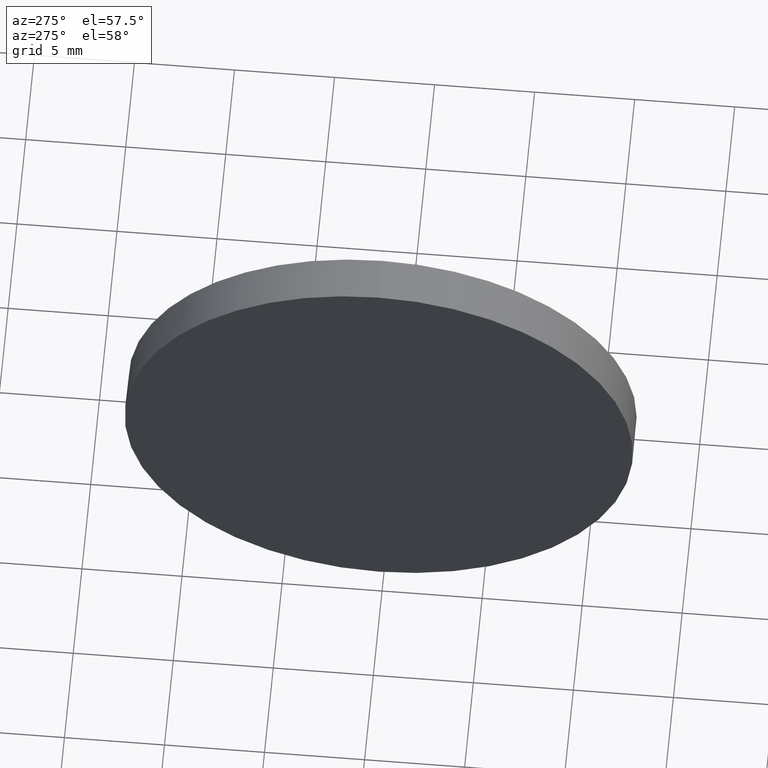
[diagram: clean part render]
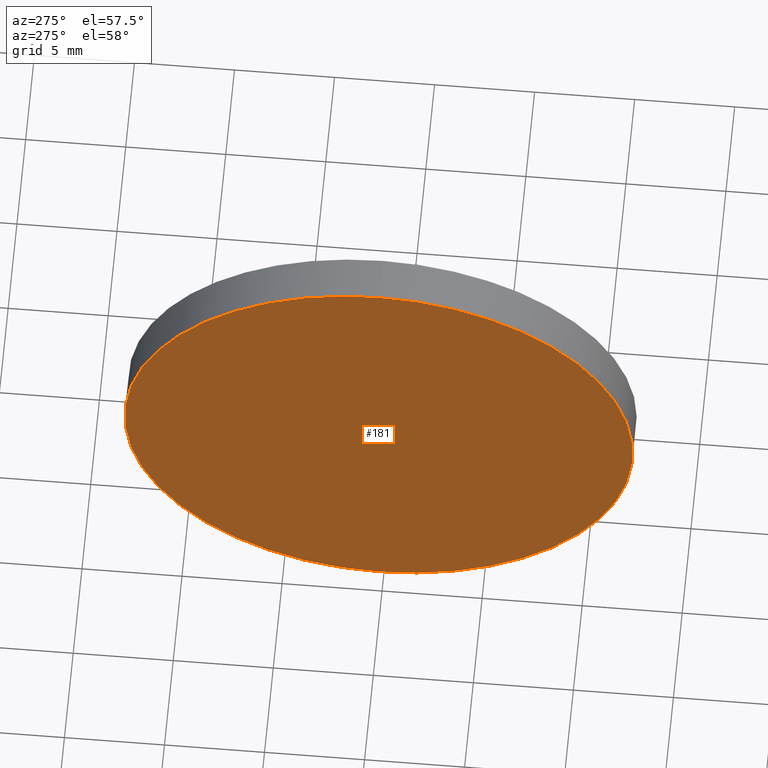
[diagram: same view with one face highlighted and labeled with its STEP entity id]
A machine part, auxiliary view. The second image highlights one B-rep face of the part: STEP entity #181.
In plain terms, the highlighted planar face has unit normal (-1, 0, 0).
Its self-contained STEP definition (entity closure, byte-faithful):
#7 = CARTESIAN_POINT ( 'NONE',  ( 115.7736064308381300, 65.23355492641219700, 0.0000000000000000000 ) ) ;
#15 = PLANE ( 'NONE',  #95 ) ;
#22 = ORIENTED_EDGE ( 'NONE', *, *, #34, .F. ) ;
#34 = EDGE_CURVE ( 'NONE', #58, #169, #164, .T. ) ;
#36 = CARTESIAN_POINT ( 'NONE',  ( 115.7736064308381300, 65.23355492641219700, 0.0000000000000000000 ) ) ;
#48 = CIRCLE ( 'NONE', #68, 12.70000000000000300 ) ;
#51 = DIRECTION ( 'NONE',  ( 0.0000000000000000000, 0.0000000000000000000, -1.000000000000000000 ) ) ;
#52 = CARTESIAN_POINT ( 'NONE',  ( 115.7736064308381300, 65.23355492641219700, 12.70000000000000300 ) ) ;
#55 = AXIS2_PLACEMENT_3D ( 'NONE', #36, #141, #51 ) ;
#58 = VERTEX_POINT ( 'NONE', #52 ) ;
#61 = EDGE_CURVE ( 'NONE', #169, #58, #48, .T. ) ;
#67 = FACE_OUTER_BOUND ( 'NONE', #156, .T. ) ;
#68 = AXIS2_PLACEMENT_3D ( 'NONE', #151, #160, #158 ) ;
#74 = CARTESIAN_POINT ( 'NONE',  ( 115.7736064308381300, 65.23355492641219700, -12.70000000000000300 ) ) ;
#80 = ORIENTED_EDGE ( 'NONE', *, *, #61, .F. ) ;
#95 = AXIS2_PLACEMENT_3D ( 'NONE', #7, #148, #147 ) ;
#141 = DIRECTION ( 'NONE',  ( 1.000000000000000000, -0.0000000000000000000, -0.0000000000000000000 ) ) ;
#147 = DIRECTION ( 'NONE',  ( 0.0000000000000000000, 0.0000000000000000000, 1.000000000000000000 ) ) ;
#148 = DIRECTION ( 'NONE',  ( -1.000000000000000000, 0.0000000000000000000, 0.0000000000000000000 ) ) ;
#151 = CARTESIAN_POINT ( 'NONE',  ( 115.7736064308381300, 65.23355492641219700, 0.0000000000000000000 ) ) ;
#156 = EDGE_LOOP ( 'NONE', ( #80, #22 ) ) ;
#158 = DIRECTION ( 'NONE',  ( 0.0000000000000000000, 0.0000000000000000000, -1.000000000000000000 ) ) ;
#160 = DIRECTION ( 'NONE',  ( 1.000000000000000000, -0.0000000000000000000, -0.0000000000000000000 ) ) ;
#164 = CIRCLE ( 'NONE', #55, 12.70000000000000300 ) ;
#169 = VERTEX_POINT ( 'NONE', #74 ) ;
#181 = ADVANCED_FACE ( 'NONE', ( #67 ), #15, .T. ) ;